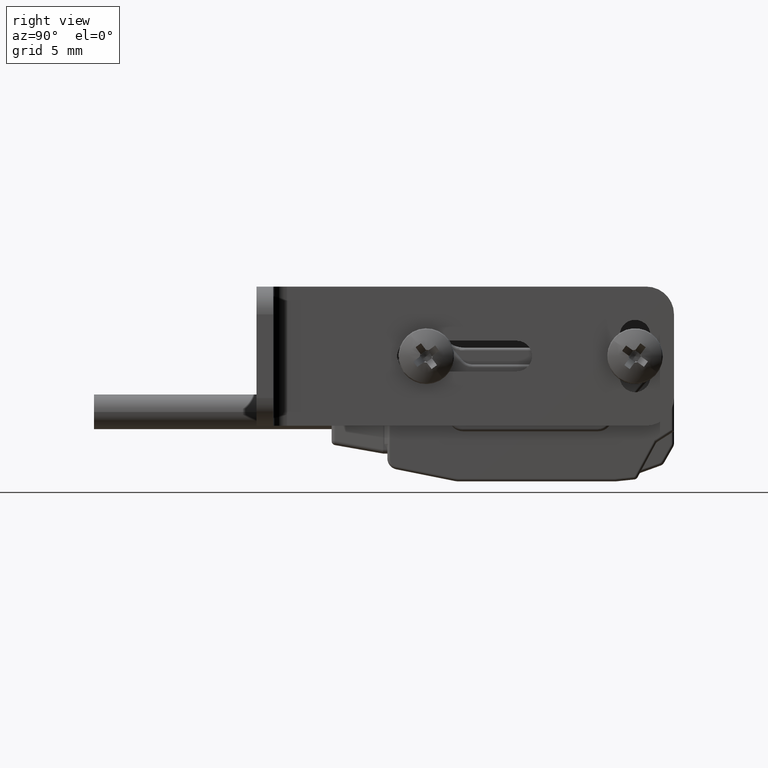
[diagram: clean part render]
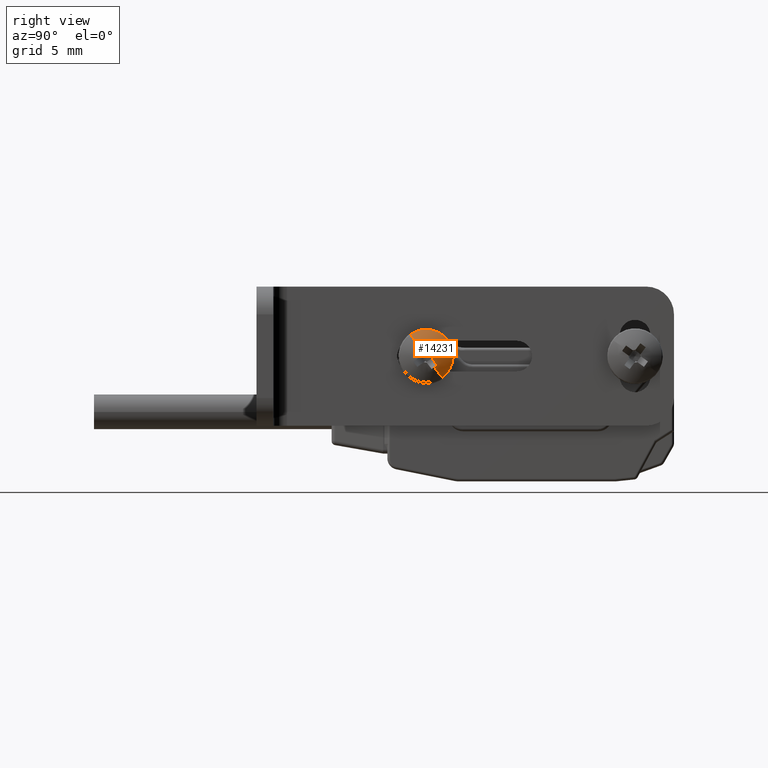
[diagram: same view with one face highlighted and labeled with its STEP entity id]
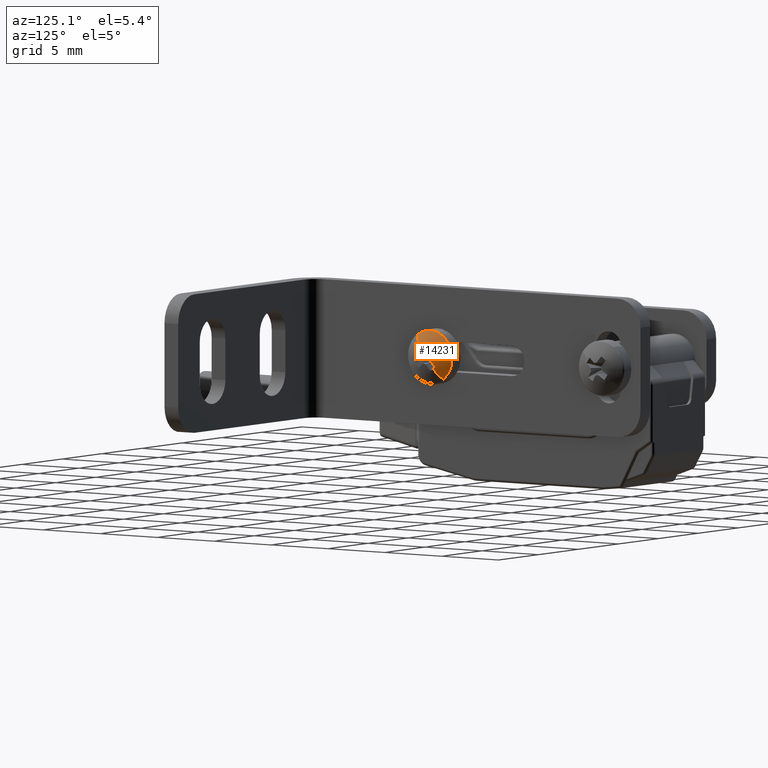
[diagram: same view with one face highlighted and labeled with its STEP entity id]
A machine part, right view. The second image highlights one B-rep face of the part: STEP entity #14231.
A second angle (auxiliary view) of the same face is appended — the face is thin or edge-on in the first view.
In plain terms, the highlighted spherical surface has radius 3.2 mm.
Its self-contained STEP definition (entity closure, byte-faithful):
#81 = EDGE_CURVE ( 'NONE', #15195, #12519, #19113, .T. ) ;
#241 = CIRCLE ( 'NONE', #13465, 3.199999999999999734 ) ;
#392 = ORIENTED_EDGE ( 'NONE', *, *, #16508, .F. ) ;
#468 = DIRECTION ( 'NONE',  ( 0.000000000000000000, -0.8065536431734607881, -0.5911609092993358461 ) ) ;
#1342 = EDGE_CURVE ( 'NONE', #14030, #8938, #13673, .T. ) ;
#1404 = CIRCLE ( 'NONE', #3929, 1.928476821192055102 ) ;
#1449 = DIRECTION ( 'NONE',  ( 0.000000000000000000, -0.5911609092993340697, 0.8065536431734622314 ) ) ;
#1765 = VERTEX_POINT ( 'NONE', #18332 ) ;
#2048 = VERTEX_POINT ( 'NONE', #15158 ) ;
#2099 = AXIS2_PLACEMENT_3D ( 'NONE', #16089, #2548, #14692 ) ;
#2175 = CARTESIAN_POINT ( 'NONE',  ( 3.417812293675850377, -3.297070070638665307, 1.646738559671276469 ) ) ;
#2267 = ORIENTED_EDGE ( 'NONE', *, *, #15648, .T. ) ;
#2322 = CARTESIAN_POINT ( 'NONE',  ( 6.239923329550600251, -3.935291696530985206, 2.923480586491174371 ) ) ;
#2548 = DIRECTION ( 'NONE',  ( 1.000000000000000000, 6.165608475720729726E-18, -8.412081888783199882E-18 ) ) ;
#2604 = ORIENTED_EDGE ( 'NONE', *, *, #4019, .F. ) ;
#2641 = DIRECTION ( 'NONE',  ( -1.000000000000000000, -4.934554275553788076E-17, -3.616765750441129834E-17 ) ) ;
#3203 = CIRCLE ( 'NONE', #15193, 3.190987308028658376 ) ;
#3258 = CARTESIAN_POINT ( 'NONE',  ( 6.239923329550600251, -2.788216405911544626, 1.358462094757872940 ) ) ;
#3388 = EDGE_CURVE ( 'NONE', #4075, #7632, #18619, .T. ) ;
#3427 = CARTESIAN_POINT ( 'NONE',  ( 5.753620400553900005, -4.695367036761485480, 3.554512728300672553 ) ) ;
#3461 = CARTESIAN_POINT ( 'NONE',  ( 3.200000000000001510, -3.555326925582895203, 1.999092722392667554 ) ) ;
#3513 = DIRECTION ( 'NONE',  ( 0.000000000000000000, 0.8065536431734624534, 0.5911609092993337367 ) ) ;
#3525 = DIRECTION ( 'NONE',  ( 2.775557561562859920E-17, -0.5911609092993329595, 0.8065536431734630085 ) ) ;
#3576 = CIRCLE ( 'NONE', #15270, 3.199999999999999734 ) ;
#3789 = EDGE_LOOP ( 'NONE', ( #12477, #14952, #10607, #2267, #10466, #392, #2604, #9954, #7806, #11410, #10614, #4794, #6496 ) ) ;
#3929 = AXIS2_PLACEMENT_3D ( 'NONE', #18174, #16700, #15416 ) ;
#4019 = EDGE_CURVE ( 'NONE', #11611, #5378, #3203, .T. ) ;
#4075 = VERTEX_POINT ( 'NONE', #6838 ) ;
#4134 = DIRECTION ( 'NONE',  ( 0.000000000000000000, 0.5911609092993340697, -0.8065536431734621203 ) ) ;
#4164 = CARTESIAN_POINT ( 'NONE',  ( 3.200000000000001510, -3.361754051221264916, 2.140971340624568509 ) ) ;
#4522 = CARTESIAN_POINT ( 'NONE',  ( 3.200000000000001510, -3.555326925582895203, 1.999092722392667554 ) ) ;
#4794 = ORIENTED_EDGE ( 'NONE', *, *, #6878, .T. ) ;
#4951 = AXIS2_PLACEMENT_3D ( 'NONE', #10835, #3525, #16867 ) ;
#4954 = CIRCLE ( 'NONE', #7149, 3.162547666931029067 ) ;
#5228 = DIRECTION ( 'NONE',  ( 0.000000000000000000, 0.5911609092993340697, -0.8065536431734622314 ) ) ;
#5378 = VERTEX_POINT ( 'NONE', #12155 ) ;
#5505 = DIRECTION ( 'NONE',  ( 0.8949343677499600469, 0.3598824617942555926, 0.2637746976358524842 ) ) ;
#5794 = EDGE_CURVE ( 'NONE', #9874, #14030, #1404, .T. ) ;
#5837 = AXIS2_PLACEMENT_3D ( 'NONE', #2175, #10798, #8193 ) ;
#6134 = EDGE_CURVE ( 'NONE', #8938, #1765, #3576, .T. ) ;
#6296 = CARTESIAN_POINT ( 'NONE',  ( 3.200000000000001510, -3.361754051221264916, 2.140971340624568509 ) ) ;
#6496 = ORIENTED_EDGE ( 'NONE', *, *, #7118, .F. ) ;
#6838 = CARTESIAN_POINT ( 'NONE',  ( 6.367838553207151087, -3.588561854329944900, 2.450417816228372736 ) ) ;
#6878 = EDGE_CURVE ( 'NONE', #10198, #16112, #4954, .T. ) ;
#7118 = EDGE_CURVE ( 'NONE', #9874, #16112, #241, .T. ) ;
#7149 = AXIS2_PLACEMENT_3D ( 'NONE', #10270, #15833, #12867 ) ;
#7200 = CARTESIAN_POINT ( 'NONE',  ( 3.200000000000001510, -3.555326925582895203, 1.999092722392667554 ) ) ;
#7632 = VERTEX_POINT ( 'NONE', #2322 ) ;
#7806 = ORIENTED_EDGE ( 'NONE', *, *, #81, .F. ) ;
#7949 = DIRECTION ( 'NONE',  ( 0.000000000000000000, -0.8065536431734616762, -0.5911609092993347359 ) ) ;
#8193 = DIRECTION ( 'NONE',  ( -0.8949343677499599359, 0.2637746976358524287, -0.3598824617942559811 ) ) ;
#8938 = VERTEX_POINT ( 'NONE', #3427 ) ;
#9063 = DIRECTION ( 'NONE',  ( -6.118073258138560264E-17, 0.8065536431734622314, 0.5911609092993340697 ) ) ;
#9412 = AXIS2_PLACEMENT_3D ( 'NONE', #7200, #2641, #4134 ) ;
#9478 = DIRECTION ( 'NONE',  ( 6.118073258138560264E-17, -0.8065536431734622314, -0.5911609092993340697 ) ) ;
#9687 = CARTESIAN_POINT ( 'NONE',  ( 6.239923329550600251, -2.630939061484375507, 2.379057493340767770 ) ) ;
#9872 = DIRECTION ( 'NONE',  ( -1.000000000000000000, 0.000000000000000000, 0.000000000000000000 ) ) ;
#9874 = VERTEX_POINT ( 'NONE', #15331 ) ;
#9954 = ORIENTED_EDGE ( 'NONE', *, *, #11713, .T. ) ;
#10198 = VERTEX_POINT ( 'NONE', #3258 ) ;
#10270 = CARTESIAN_POINT ( 'NONE',  ( 3.417812293675850377, -3.813583780527125100, 2.351446885114072405 ) ) ;
#10466 = ORIENTED_EDGE ( 'NONE', *, *, #3388, .F. ) ;
#10607 = ORIENTED_EDGE ( 'NONE', *, *, #6134, .T. ) ;
#10614 = ORIENTED_EDGE ( 'NONE', *, *, #12066, .F. ) ;
#10798 = DIRECTION ( 'NONE',  ( -0.4461978007789589862, -0.5290502146022909580, 0.7218125747098690370 ) ) ;
#10835 = CARTESIAN_POINT ( 'NONE',  ( 3.200000000000001510, -3.413448307351054645, 1.805519848031067465 ) ) ;
#11410 = ORIENTED_EDGE ( 'NONE', *, *, #19102, .F. ) ;
#11611 = VERTEX_POINT ( 'NONE', #13915 ) ;
#11713 = EDGE_CURVE ( 'NONE', #11611, #12519, #18136, .T. ) ;
#11775 = AXIS2_PLACEMENT_3D ( 'NONE', #12800, #18838, #468 ) ;
#12066 = EDGE_CURVE ( 'NONE', #10198, #2048, #17230, .T. ) ;
#12155 = CARTESIAN_POINT ( 'NONE',  ( 6.367838553207151087, -3.387759068210835167, 2.419473399862967611 ) ) ;
#12318 = AXIS2_PLACEMENT_3D ( 'NONE', #4164, #16213, #9872 ) ;
#12465 = DIRECTION ( 'NONE',  ( 0.000000000000000000, -0.8065536431734643408, -0.5911609092993312942 ) ) ;
#12477 = ORIENTED_EDGE ( 'NONE', *, *, #5794, .T. ) ;
#12519 = VERTEX_POINT ( 'NONE', #9687 ) ;
#12596 = DIRECTION ( 'NONE',  ( -1.000000000000000000, 0.000000000000000000, 0.000000000000000000 ) ) ;
#12631 = CARTESIAN_POINT ( 'NONE',  ( 5.753620400553900005, -1.999906919674875327, 3.139132833571270265 ) ) ;
#12712 = CARTESIAN_POINT ( 'NONE',  ( 6.248084890459849383, -2.979383725923435478, 1.213301445197274786 ) ) ;
#12800 = CARTESIAN_POINT ( 'NONE',  ( 5.753620400553900005, -3.555326925582895203, 1.999092722392667554 ) ) ;
#12867 = DIRECTION ( 'NONE',  ( 0.8949343677499600469, 0.2637746976358524842, -0.3598824617942555926 ) ) ;
#13465 = AXIS2_PLACEMENT_3D ( 'NONE', #3461, #9478, #5228 ) ;
#13673 = CIRCLE ( 'NONE', #11775, 1.928476821192055102 ) ;
#13728 = CIRCLE ( 'NONE', #5837, 3.162547666931029511 ) ;
#13759 = CIRCLE ( 'NONE', #15950, 0.4525471255180569807 ) ;
#13915 = CARTESIAN_POINT ( 'NONE',  ( 6.239923329550600251, -2.914696297948055737, 2.766203242064071866 ) ) ;
#14030 = VERTEX_POINT ( 'NONE', #12631 ) ;
#14231 = ADVANCED_FACE ( 'NONE', ( #17457 ), #15992, .T. ) ;
#14692 = DIRECTION ( 'NONE',  ( 0.000000000000000000, 0.8065536431734513512, 0.5911609092993488357 ) ) ;
#14952 = ORIENTED_EDGE ( 'NONE', *, *, #1342, .T. ) ;
#15158 = CARTESIAN_POINT ( 'NONE',  ( 6.367838553207151087, -3.134946248112595146, 1.831524865020674131 ) ) ;
#15193 = AXIS2_PLACEMENT_3D ( 'NONE', #15532, #17110, #12465 ) ;
#15195 = VERTEX_POINT ( 'NONE', #16847 ) ;
#15270 = AXIS2_PLACEMENT_3D ( 'NONE', #4522, #9063, #1449 ) ;
#15331 = CARTESIAN_POINT ( 'NONE',  ( 5.753620400553900005, -2.415286814404305371, 0.4436727164846762661 ) ) ;
#15374 = CIRCLE ( 'NONE', #2099, 0.4525471255180578689 ) ;
#15416 = DIRECTION ( 'NONE',  ( 0.000000000000000000, -0.8065536431734607881, -0.5911609092993358461 ) ) ;
#15476 = CARTESIAN_POINT ( 'NONE',  ( 6.367838553207151087, -3.555326925582895203, 1.999092722392667554 ) ) ;
#15532 = CARTESIAN_POINT ( 'NONE',  ( 3.200000000000001510, -3.697205543814734874, 2.192665596754274304 ) ) ;
#15648 = EDGE_CURVE ( 'NONE', #1765, #7632, #13728, .T. ) ;
#15833 = DIRECTION ( 'NONE',  ( -0.4461978007789583756, 0.5290502146022918462, -0.7218125747098689260 ) ) ;
#15873 = DIRECTION ( 'NONE',  ( -0.4461978007789583756, 0.7218125747098709244, 0.5290502146022888486 ) ) ;
#15950 = AXIS2_PLACEMENT_3D ( 'NONE', #15476, #17343, #3513 ) ;
#15982 = CARTESIAN_POINT ( 'NONE',  ( 3.417812293675850377, -3.907681088304305383, 1.740835867448470298 ) ) ;
#15992 = SPHERICAL_SURFACE ( 'NONE', #9412, 3.200000000000000178 ) ;
#16089 = CARTESIAN_POINT ( 'NONE',  ( 6.367838553207151087, -3.555326925582895203, 1.999092722392667554 ) ) ;
#16112 = VERTEX_POINT ( 'NONE', #12712 ) ;
#16213 = DIRECTION ( 'NONE',  ( 0.000000000000000000, -0.8065536431734616762, -0.5911609092993347359 ) ) ;
#16508 = EDGE_CURVE ( 'NONE', #5378, #4075, #13759, .T. ) ;
#16700 = DIRECTION ( 'NONE',  ( 1.000000000000000000, 6.165608475720000183E-18, -8.412081888782498844E-18 ) ) ;
#16847 = CARTESIAN_POINT ( 'NONE',  ( 6.367838553207151087, -3.104001831747164708, 2.032327651139774538 ) ) ;
#16867 = DIRECTION ( 'NONE',  ( 0.000000000000000000, 0.8065536431734628975, 0.5911609092993329595 ) ) ;
#17110 = DIRECTION ( 'NONE',  ( -3.331646382876016144E-16, 0.5911609092993311831, -0.8065536431734643408 ) ) ;
#17230 = CIRCLE ( 'NONE', #17875, 3.190987308028654823 ) ;
#17343 = DIRECTION ( 'NONE',  ( 1.000000000000000000, 6.165608475719920065E-18, -8.412081888782418725E-18 ) ) ;
#17457 = FACE_OUTER_BOUND ( 'NONE', #3789, .T. ) ;
#17875 = AXIS2_PLACEMENT_3D ( 'NONE', #6296, #7949, #12596 ) ;
#18136 = CIRCLE ( 'NONE', #19077, 3.162547666931029067 ) ;
#18174 = CARTESIAN_POINT ( 'NONE',  ( 5.753620400553900005, -3.555326925582895203, 1.999092722392667554 ) ) ;
#18332 = CARTESIAN_POINT ( 'NONE',  ( 6.248084890459849383, -4.131270125242364699, 2.784883999588073866 ) ) ;
#18619 = CIRCLE ( 'NONE', #12318, 3.190987308028654823 ) ;
#18838 = DIRECTION ( 'NONE',  ( 1.000000000000000000, 6.165608475720000183E-18, -8.412081888782498844E-18 ) ) ;
#19077 = AXIS2_PLACEMENT_3D ( 'NONE', #15982, #15873, #5505 ) ;
#19102 = EDGE_CURVE ( 'NONE', #2048, #15195, #15374, .T. ) ;
#19113 = CIRCLE ( 'NONE', #4951, 3.190987308028665037 ) ;